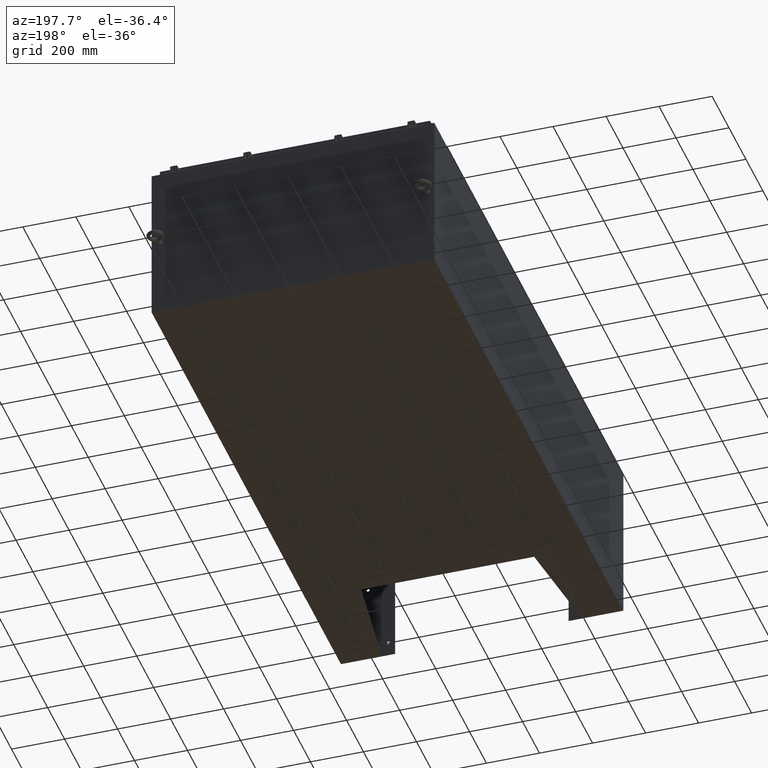
[diagram: clean part render]
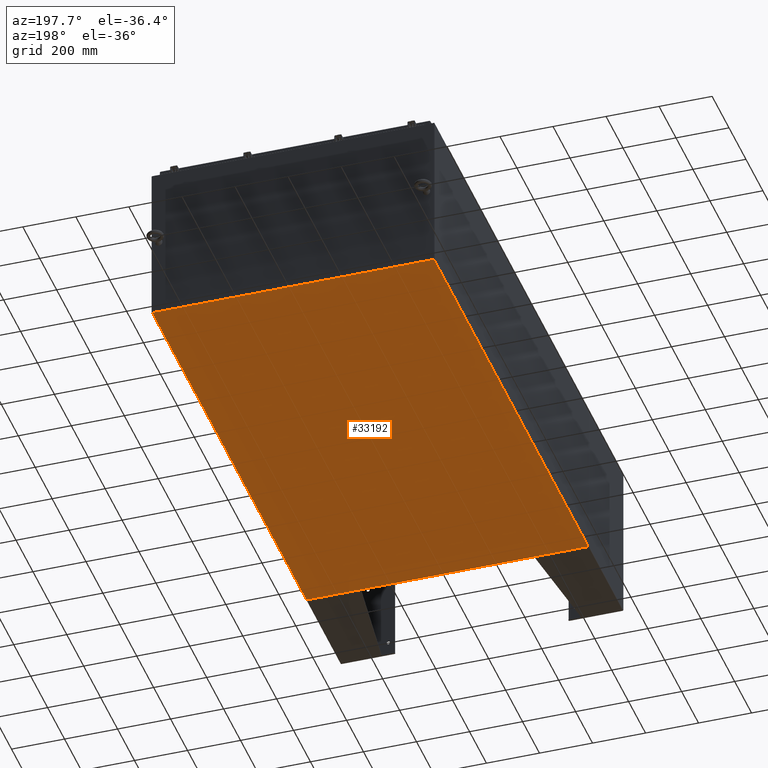
[diagram: same view with one face highlighted and labeled with its STEP entity id]
A machine part, auxiliary view. The second image highlights one B-rep face of the part: STEP entity #33192.
In plain terms, the highlighted planar face has unit normal (0, 0, -1).
Its self-contained STEP definition (entity closure, byte-faithful):
#943 = EDGE_CURVE ( 'NONE', #21838, #17950, #75867, .T. ) ;
#3356 = CARTESIAN_POINT ( 'NONE',  ( 20.91230000000000900, 35.92530000000000000, -0.07469999999999994700 ) ) ;
#5862 = LINE ( 'NONE', #35911, #20021 ) ;
#8616 = CARTESIAN_POINT ( 'NONE',  ( -20.91230000000000500, 35.92530000000000000, -0.07470000000000000300 ) ) ;
#10217 = VECTOR ( 'NONE', #53781, 39.37007874015748100 ) ;
#12195 = DIRECTION ( 'NONE',  ( -0.0000000000000000000, -1.000000000000000000, -0.0000000000000000000 ) ) ;
#13027 = VECTOR ( 'NONE', #17414, 39.37007874015748100 ) ;
#17414 = DIRECTION ( 'NONE',  ( -1.000000000000000000, -0.0000000000000000000, -0.0000000000000000000 ) ) ;
#17950 = VERTEX_POINT ( 'NONE', #8616 ) ;
#18294 = EDGE_CURVE ( 'NONE', #21838, #55074, #5862, .T. ) ;
#18741 = CARTESIAN_POINT ( 'NONE',  ( 0.0000000000000000000, 0.0000000000000000000, -0.07470000000000000300 ) ) ;
#19892 = FACE_OUTER_BOUND ( 'NONE', #36534, .T. ) ;
#20021 = VECTOR ( 'NONE', #12195, 39.37007874015748100 ) ;
#20689 = DIRECTION ( 'NONE',  ( -0.0000000000000000000, 1.000000000000000000, -0.0000000000000000000 ) ) ;
#21838 = VERTEX_POINT ( 'NONE', #3356 ) ;
#21961 = AXIS2_PLACEMENT_3D ( 'NONE', #18741, #65788, #30586 ) ;
#24315 = CARTESIAN_POINT ( 'NONE',  ( -21.00000000000000000, -35.92529999999999300, -0.07470000000000000300 ) ) ;
#24354 = ORIENTED_EDGE ( 'NONE', *, *, #24576, .F. ) ;
#24576 = EDGE_CURVE ( 'NONE', #29876, #55074, #41781, .T. ) ;
#28485 = EDGE_CURVE ( 'NONE', #29876, #17950, #46864, .T. ) ;
#29876 = VERTEX_POINT ( 'NONE', #56478 ) ;
#30586 = DIRECTION ( 'NONE',  ( -1.000000000000000000, 0.0000000000000000000, -0.0000000000000000000 ) ) ;
#33192 = ADVANCED_FACE ( 'NONE', ( #19892 ), #60001, .T. ) ;
#35911 = CARTESIAN_POINT ( 'NONE',  ( 20.91230000000000900, 35.92530000000000000, -0.07469999999999994700 ) ) ;
#36534 = EDGE_LOOP ( 'NONE', ( #24354, #74174, #74828, #70465 ) ) ;
#38425 = CARTESIAN_POINT ( 'NONE',  ( -20.91230000000003000, -35.92530000000000000, -0.07469999999999994700 ) ) ;
#41781 = LINE ( 'NONE', #24315, #10217 ) ;
#46864 = LINE ( 'NONE', #38425, #62472 ) ;
#48347 = CARTESIAN_POINT ( 'NONE',  ( 20.91230000000000900, -35.92529999999999300, -0.07470000000000000300 ) ) ;
#53781 = DIRECTION ( 'NONE',  ( 1.000000000000000000, 0.0000000000000000000, 0.0000000000000000000 ) ) ;
#55074 = VERTEX_POINT ( 'NONE', #48347 ) ;
#56478 = CARTESIAN_POINT ( 'NONE',  ( -20.91230000000003000, -35.92530000000000000, -0.07469999999999994700 ) ) ;
#60001 = PLANE ( 'NONE',  #21961 ) ;
#62472 = VECTOR ( 'NONE', #20689, 39.37007874015748100 ) ;
#65788 = DIRECTION ( 'NONE',  ( 0.0000000000000000000, 0.0000000000000000000, -1.000000000000000000 ) ) ;
#70465 = ORIENTED_EDGE ( 'NONE', *, *, #18294, .T. ) ;
#74174 = ORIENTED_EDGE ( 'NONE', *, *, #28485, .T. ) ;
#74828 = ORIENTED_EDGE ( 'NONE', *, *, #943, .F. ) ;
#75867 = LINE ( 'NONE', #76205, #13027 ) ;
#76205 = CARTESIAN_POINT ( 'NONE',  ( -20.99999999999999600, 35.92530000000000000, -0.07470000000000000300 ) ) ;